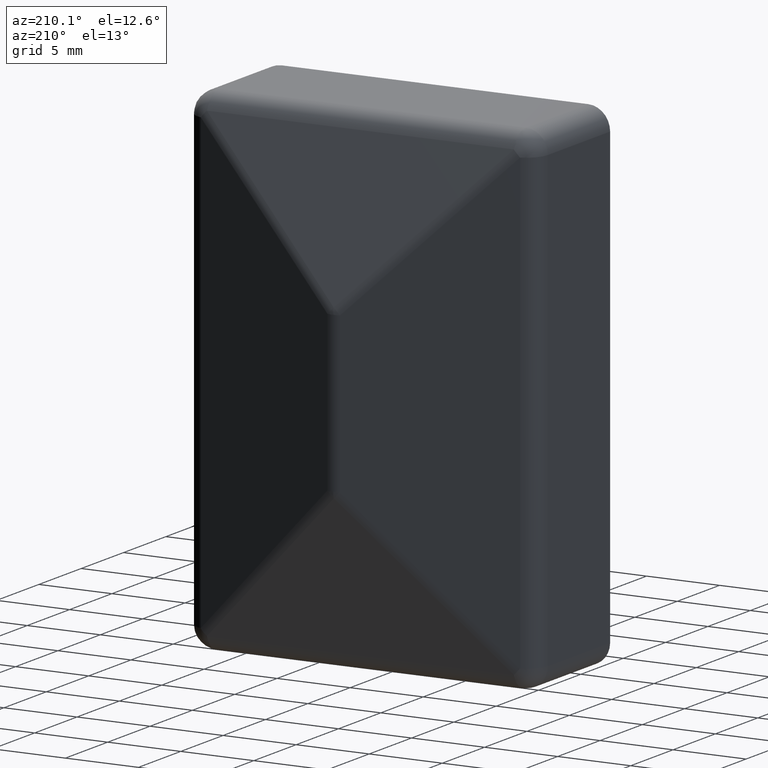
[diagram: clean part render]
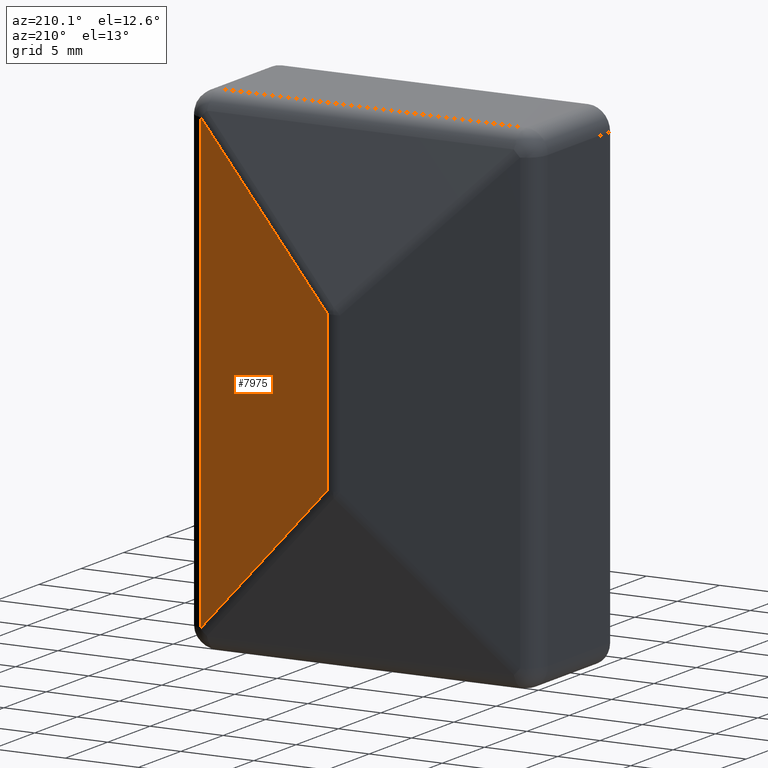
[diagram: same view with one face highlighted and labeled with its STEP entity id]
A machine part, auxiliary view. The second image highlights one B-rep face of the part: STEP entity #7975.
In plain terms, the highlighted planar face has unit normal (-0.2873, -0.9578, 0).
Its self-contained STEP definition (entity closure, byte-faithful):
#784 = PLANE ( 'NONE',  #5276 ) ;
#1823 = VERTEX_POINT ( 'NONE', #2596 ) ;
#1980 = FACE_OUTER_BOUND ( 'NONE', #2445, .T. ) ;
#2382 = VERTEX_POINT ( 'NONE', #9505 ) ;
#2445 = EDGE_LOOP ( 'NONE', ( #13752, #3349, #13081, #13559 ) ) ;
#2596 = CARTESIAN_POINT ( 'NONE',  ( 0.4310218283495175218, 11.93673942783172848, -5.355342120955780771 ) ) ;
#2603 = DIRECTION ( 'NONE',  ( 0.7029955450421474517, -0.2108986635126436915, 0.6792046947566504622 ) ) ;
#3109 = VERTEX_POINT ( 'NONE', #6874 ) ;
#3326 = CARTESIAN_POINT ( 'NONE',  ( 10.93102182834953950, 8.786739427831729898, -16.99999999999997513 ) ) ;
#3349 = ORIENTED_EDGE ( 'NONE', *, *, #3449, .T. ) ;
#3444 = VECTOR ( 'NONE', #8114, 1000.000000000000000 ) ;
#3449 = EDGE_CURVE ( 'NONE', #2382, #1823, #6000, .T. ) ;
#3737 = VECTOR ( 'NONE', #2603, 1000.000000000000000 ) ;
#4633 = VECTOR ( 'NONE', #13940, 1000.000000000000000 ) ;
#4993 = DIRECTION ( 'NONE',  ( -0.2873478855663447740, -0.9578262852211516520, 0.000000000000000000 ) ) ;
#5172 = EDGE_CURVE ( 'NONE', #3109, #9226, #11790, .T. ) ;
#5276 = AXIS2_PLACEMENT_3D ( 'NONE', #7371, #4993, #6082 ) ;
#6000 = LINE ( 'NONE', #9590, #4633 ) ;
#6082 = DIRECTION ( 'NONE',  ( 0.9578262852211515410, -0.2873478855663447185, 0.000000000000000000 ) ) ;
#6874 = CARTESIAN_POINT ( 'NONE',  ( 0.4310218283495175218, 11.93673942783172848, 5.355342120955786100 ) ) ;
#7371 = CARTESIAN_POINT ( 'NONE',  ( 0.4310218283495175218, 11.93673942783172848, -16.99999999999997513 ) ) ;
#7550 = DIRECTION ( 'NONE',  ( -0.000000000000000000, -0.000000000000000000, 1.000000000000000000 ) ) ;
#7975 = ADVANCED_FACE ( 'NONE', ( #1980 ), #784, .F. ) ;
#8114 = DIRECTION ( 'NONE',  ( -0.000000000000000000, -0.000000000000000000, 1.000000000000000000 ) ) ;
#8476 = VECTOR ( 'NONE', #7550, 1000.000000000000000 ) ;
#9226 = VERTEX_POINT ( 'NONE', #11820 ) ;
#9505 = CARTESIAN_POINT ( 'NONE',  ( 10.93102182834953950, 8.786739427831729898, -15.50000000000002842 ) ) ;
#9590 = CARTESIAN_POINT ( 'NONE',  ( 5.991088322712427860, 10.26871947952285957, -10.72724425143660554 ) ) ;
#9629 = LINE ( 'NONE', #11596, #3444 ) ;
#11229 = EDGE_CURVE ( 'NONE', #2382, #9226, #12067, .T. ) ;
#11486 = CARTESIAN_POINT ( 'NONE',  ( -10.24315941319920142, 15.13899380029633690, -4.957602339465505992 ) ) ;
#11596 = CARTESIAN_POINT ( 'NONE',  ( 0.4310218283495174108, 11.93673942783172848, -16.99999999999997513 ) ) ;
#11790 = LINE ( 'NONE', #11486, #3737 ) ;
#11820 = CARTESIAN_POINT ( 'NONE',  ( 10.93102182834953950, 8.786739427831729898, 15.50000000000006217 ) ) ;
#12067 = LINE ( 'NONE', #3326, #8476 ) ;
#13081 = ORIENTED_EDGE ( 'NONE', *, *, #13263, .T. ) ;
#13263 = EDGE_CURVE ( 'NONE', #1823, #3109, #9629, .T. ) ;
#13559 = ORIENTED_EDGE ( 'NONE', *, *, #5172, .T. ) ;
#13752 = ORIENTED_EDGE ( 'NONE', *, *, #11229, .F. ) ;
#13940 = DIRECTION ( 'NONE',  ( -0.7029955450421474517, 0.2108986635126436915, 0.6792046947566504622 ) ) ;